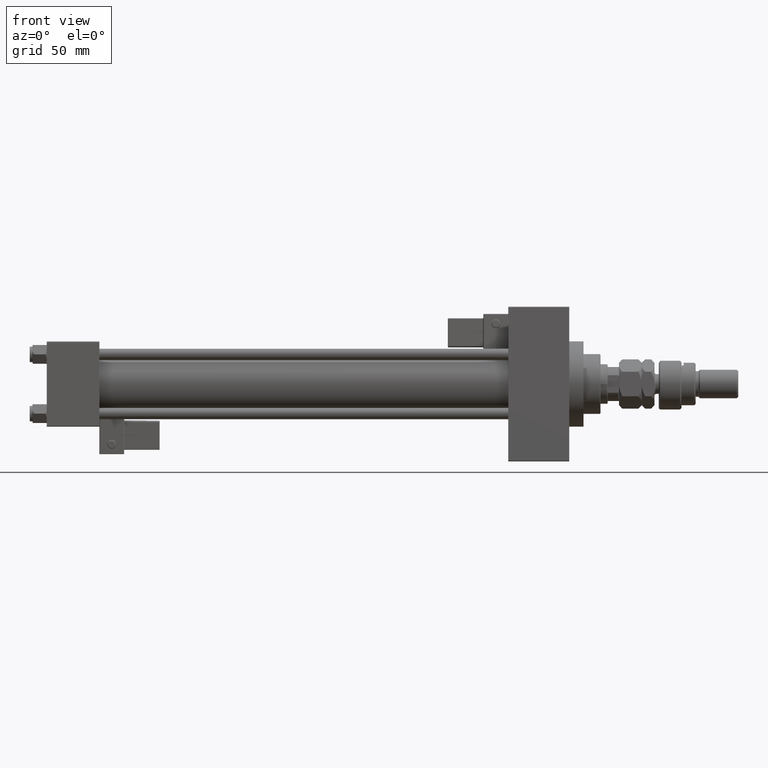
[diagram: clean part render]
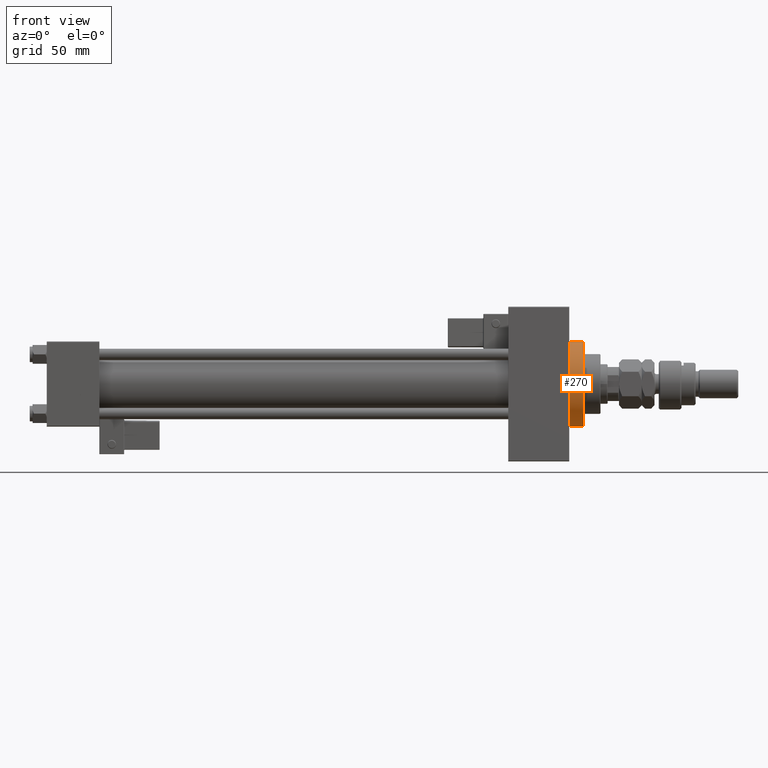
[diagram: same view with one face highlighted and labeled with its STEP entity id]
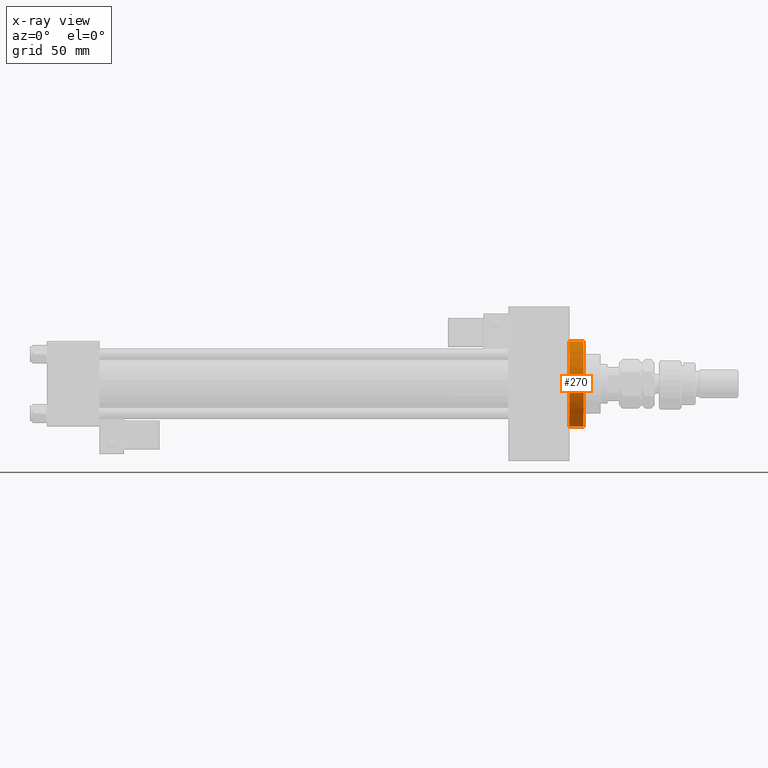
[diagram: x-ray of the same camera — body ghosted, the highlighted face saturated]
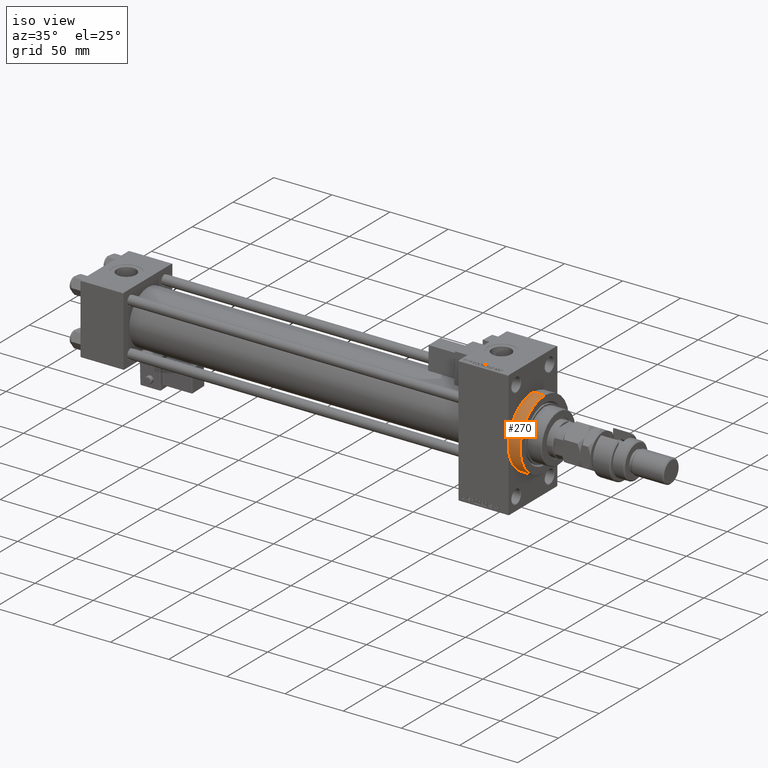
[diagram: same view with one face highlighted and labeled with its STEP entity id]
A machine part, front view. The second image highlights one B-rep face of the part: STEP entity #270.
The next image is the same camera in x-ray: the body ghosted, the highlighted face saturated — about 0% of this face is hidden behind the body in this view.
A second angle (iso view) of the same face is appended — the face is thin or edge-on in the first view.
In plain terms, the highlighted cylindrical surface (partial cylindrical patch) has radius 30 mm, axis along (-1, -0, -0).
Its self-contained STEP definition (entity closure, byte-faithful):
#270 = ADVANCED_FACE ( 'NONE', ( #32651 ), #53630, .T. ) ;
#442 = EDGE_CURVE ( 'NONE', #51089, #12170, #11080, .T. ) ;
#3854 = CARTESIAN_POINT ( 'NONE',  ( 367.9999999999999432, -30.00000000000000000, 0.000000000000000000 ) ) ;
#5726 = EDGE_LOOP ( 'NONE', ( #43443, #20503, #6867, #32355, #21327 ) ) ;
#6438 = DIRECTION ( 'NONE',  ( 0.000000000000000000, 0.000000000000000000, -1.000000000000000000 ) ) ;
#6867 = ORIENTED_EDGE ( 'NONE', *, *, #53205, .T. ) ;
#7162 = CARTESIAN_POINT ( 'NONE',  ( 377.9999999999999432, 0.000000000000000000, 0.000000000000000000 ) ) ;
#9066 = CIRCLE ( 'NONE', #23185, 30.00000000000000000 ) ;
#9414 = EDGE_CURVE ( 'NONE', #35067, #9723, #35832, .T. ) ;
#9723 = VERTEX_POINT ( 'NONE', #20372 ) ;
#10587 = CARTESIAN_POINT ( 'NONE',  ( 367.9999999999999432, 0.000000000000000000, 0.000000000000000000 ) ) ;
#11080 = CIRCLE ( 'NONE', #32271, 30.00000000000000000 ) ;
#11746 = CARTESIAN_POINT ( 'NONE',  ( 377.9999999999999432, 3.673940397442059178E-15, -30.00000000000000000 ) ) ;
#12170 = VERTEX_POINT ( 'NONE', #15884 ) ;
#14832 = DIRECTION ( 'NONE',  ( 0.000000000000000000, 0.000000000000000000, -1.000000000000000000 ) ) ;
#15533 = CARTESIAN_POINT ( 'NONE',  ( 377.9999999999999432, 0.000000000000000000, 0.000000000000000000 ) ) ;
#15884 = CARTESIAN_POINT ( 'NONE',  ( 377.9999999999999432, 3.673940397442059178E-15, -30.00000000000000000 ) ) ;
#15920 = DIRECTION ( 'NONE',  ( -1.000000000000000000, -0.000000000000000000, -0.000000000000000000 ) ) ;
#18034 = CARTESIAN_POINT ( 'NONE',  ( 377.9999999999999432, 0.000000000000000000, 30.00000000000000000 ) ) ;
#20046 = LINE ( 'NONE', #53747, #27760 ) ;
#20372 = CARTESIAN_POINT ( 'NONE',  ( 367.9999999999999432, 3.673940397442059178E-15, -30.00000000000000000 ) ) ;
#20503 = ORIENTED_EDGE ( 'NONE', *, *, #442, .F. ) ;
#21127 = LINE ( 'NONE', #11746, #38823 ) ;
#21327 = ORIENTED_EDGE ( 'NONE', *, *, #9414, .T. ) ;
#23185 = AXIS2_PLACEMENT_3D ( 'NONE', #43842, #52663, #14832 ) ;
#25285 = DIRECTION ( 'NONE',  ( -1.000000000000000000, -0.000000000000000000, -0.000000000000000000 ) ) ;
#26098 = AXIS2_PLACEMENT_3D ( 'NONE', #10587, #27440, #6438 ) ;
#27440 = DIRECTION ( 'NONE',  ( 1.000000000000000000, 0.000000000000000000, 0.000000000000000000 ) ) ;
#27685 = DIRECTION ( 'NONE',  ( 0.000000000000000000, 0.000000000000000000, 1.000000000000000000 ) ) ;
#27760 = VECTOR ( 'NONE', #15920, 1000.000000000000000 ) ;
#32271 = AXIS2_PLACEMENT_3D ( 'NONE', #7162, #52488, #48078 ) ;
#32355 = ORIENTED_EDGE ( 'NONE', *, *, #49354, .T. ) ;
#32651 = FACE_OUTER_BOUND ( 'NONE', #5726, .T. ) ;
#34852 = VERTEX_POINT ( 'NONE', #50979 ) ;
#35067 = VERTEX_POINT ( 'NONE', #3854 ) ;
#35832 = CIRCLE ( 'NONE', #26098, 30.00000000000000000 ) ;
#36930 = EDGE_CURVE ( 'NONE', #12170, #9723, #21127, .T. ) ;
#38823 = VECTOR ( 'NONE', #25285, 1000.000000000000000 ) ;
#43443 = ORIENTED_EDGE ( 'NONE', *, *, #36930, .F. ) ;
#43842 = CARTESIAN_POINT ( 'NONE',  ( 367.9999999999999432, 0.000000000000000000, 0.000000000000000000 ) ) ;
#48078 = DIRECTION ( 'NONE',  ( 0.000000000000000000, 0.000000000000000000, -1.000000000000000000 ) ) ;
#48116 = AXIS2_PLACEMENT_3D ( 'NONE', #15533, #48674, #27685 ) ;
#48674 = DIRECTION ( 'NONE',  ( -1.000000000000000000, -0.000000000000000000, -0.000000000000000000 ) ) ;
#49354 = EDGE_CURVE ( 'NONE', #34852, #35067, #9066, .T. ) ;
#50979 = CARTESIAN_POINT ( 'NONE',  ( 367.9999999999999432, 0.000000000000000000, 30.00000000000000000 ) ) ;
#51089 = VERTEX_POINT ( 'NONE', #18034 ) ;
#52488 = DIRECTION ( 'NONE',  ( 1.000000000000000000, 0.000000000000000000, 0.000000000000000000 ) ) ;
#52663 = DIRECTION ( 'NONE',  ( 1.000000000000000000, 0.000000000000000000, 0.000000000000000000 ) ) ;
#53205 = EDGE_CURVE ( 'NONE', #51089, #34852, #20046, .T. ) ;
#53630 = CYLINDRICAL_SURFACE ( 'NONE', #48116, 30.00000000000000000 ) ;
#53747 = CARTESIAN_POINT ( 'NONE',  ( 377.9999999999999432, 0.000000000000000000, 30.00000000000000000 ) ) ;